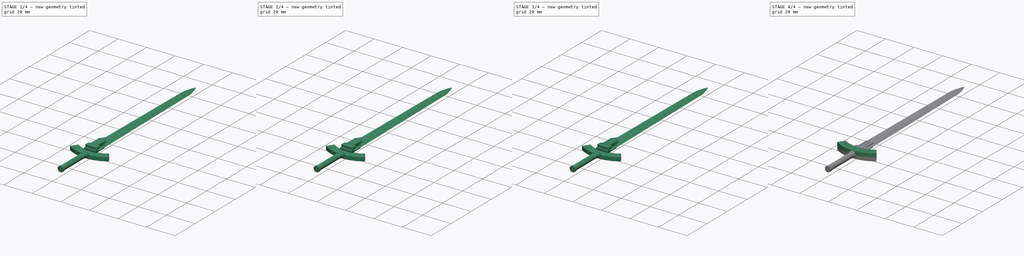
[diagram: build sequence overview — one tinted view per stage of 4, left to right]
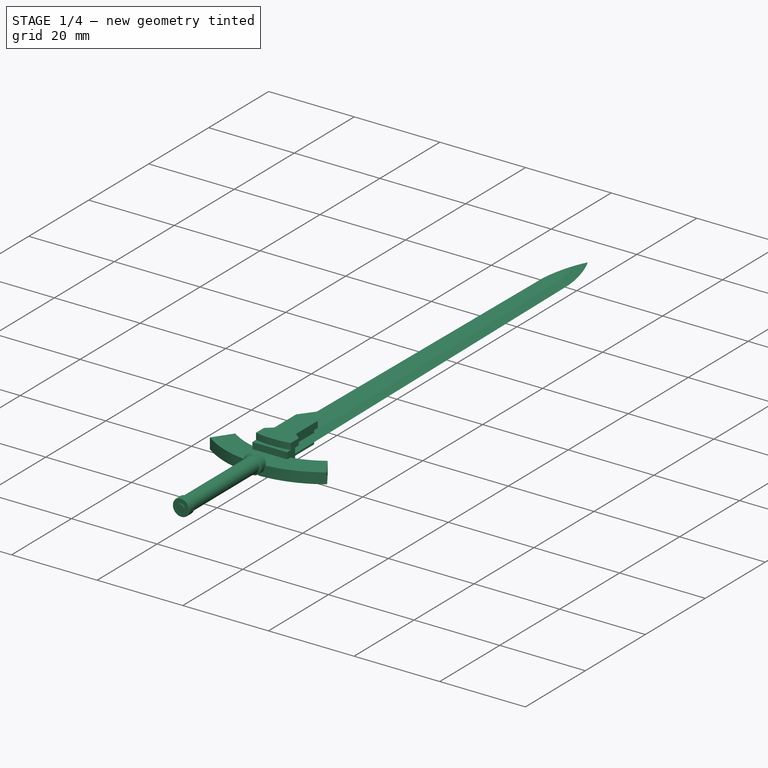
[diagram: stage 1 of 4 — iso view after this stage's code; geometry added in this stage tinted green]
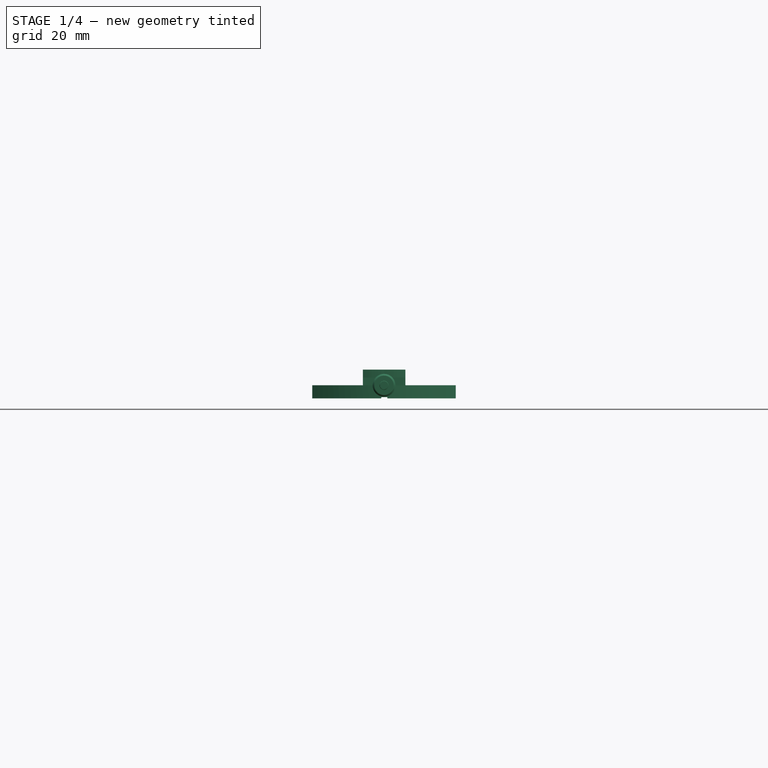
[diagram: stage 1 of 4 — front view after this stage's code; geometry added in this stage tinted green]
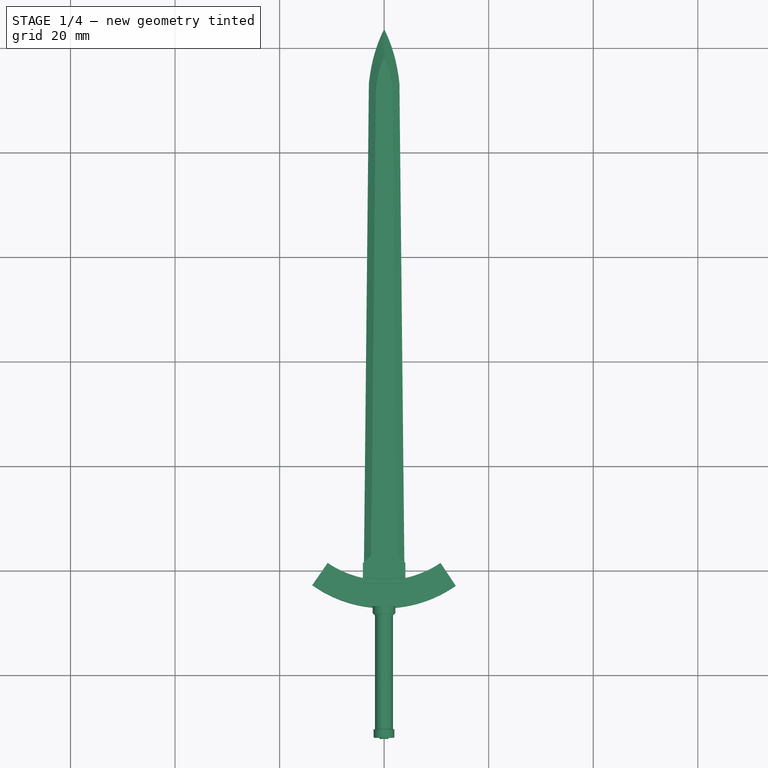
[diagram: stage 1 of 4 — top view after this stage's code; geometry added in this stage tinted green]
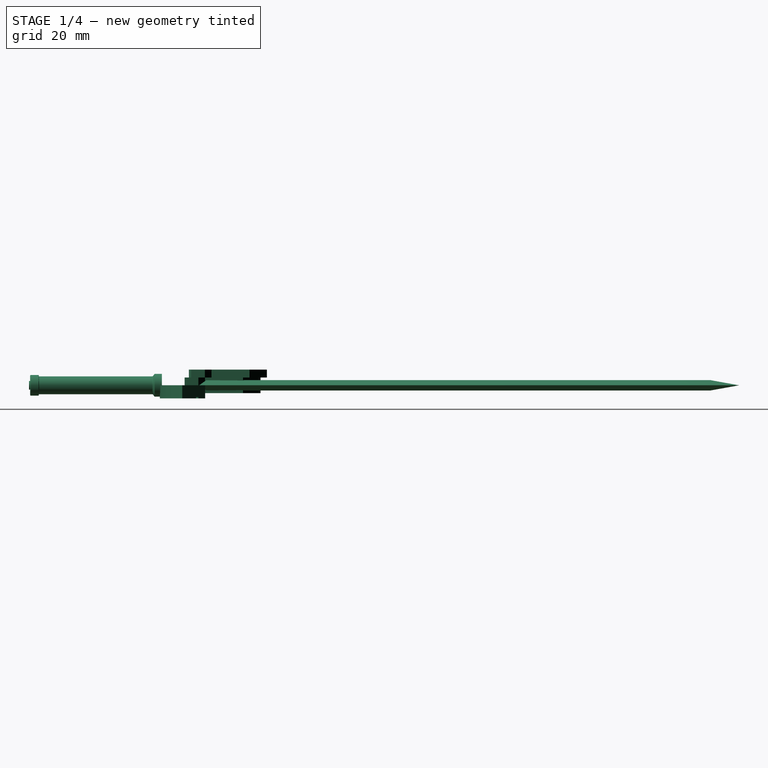
[diagram: stage 1 of 4 — right view after this stage's code; geometry added in this stage tinted green]
FCSTD DOCUMENT  (FreeCAD 0.20R29410 (Git))
Label: EX_all
License: All rights reserved
LicenseURL: http://en.wikipedia.org/wiki/All_rights_reserved
objects: Sketcher::SketchObject×7, PartDesign::Pocket×6, App::FeaturePython×6, Part::FeaturePython×4, PartDesign::Body×4, PartDesign::Boolean×2, PartDesign::Pad×1, PartDesign::FeatureBase×1, Part::Feature×1
note: 33 computed .brp shape members not serialized (recipe doc carries the construction recipe); baked Part::Feature solids carry a one-line shape summary decoded from their .brp

FEATURE [Part::FeaturePython] b_Ex__gard_001_001  label="Ex._gard_002"  # a2plus imported part (geometry in sourceFile) (typed FeaturePython)
  Placement = pos=(0,0,0) rot=(0,1,0;3.14159rad)
  a2p_Version = V0.1
  fixedPosition = true
  objectType = a2pPart
  sourceFile = .\Ex._gard.FCStd
  subassemblyImport = false
  timeLastImport = 1.6675e+09
  updateColors = true
FEATURE [Sketcher::SketchObject] MirroredSketch
  FullyConstrained = false
  Placement = pos=(0,0,3) rot=(0,0,1;0rad)
  sketch-geometry (7):
    g0: LineSegment StartX=2.82661 StartY=-39.1381 StartZ=0 EndX=2.82661 EndY=-40.013 EndZ=0
    g1: LineSegment StartX=2.46012 StartY=-40.0071 StartZ=0 EndX=2.82661 EndY=-40.013 EndZ=0
    g2: LineSegment StartX=2.46012 StartY=-40.0071 StartZ=0 EndX=0.639511 EndY=-37.82 EndZ=0
    g3: LineSegment StartX=0.639511 StartY=-37.82 StartZ=0 EndX=0.639511 EndY=-37.353 EndZ=0
    g4: LineSegment StartX=2.82661 StartY=-39.1381 StartZ=0 EndX=1.75668 EndY=-37.8301 EndZ=0
    g5: LineSegment StartX=1.75668 StartY=-37.8301 StartZ=0 EndX=1.75668 EndY=-36.6065 EndZ=0
    g6: LineSegment StartX=1.75668 StartY=-36.6065 StartZ=0 EndX=0.639511 EndY=-37.353 EndZ=0
  constraints (10):
    c: Vertical(g0)
    c: Coincident(g1,g0)
    c: Coincident(g2,g1)
    c: Coincident(g3,g2)
    c: Vertical(g3)
    c: Coincident(g4,g0)
    c: Coincident(g5,g4)
    c: Vertical(g5)
    c: Coincident(g6,g5)
    c: Coincident(g6,g3)
FEATURE [Sketcher::SketchObject] Sketch
  FullyConstrained = true
  MapMode = 5
  Placement = pos=(-12.8461,-9.73503,0) rot=(0.331487,0.667127,0.667127;2.50142rad)
FEATURE [Sketcher::SketchObject] Sketch007
  FullyConstrained = false
  Placement = pos=(0,0,1.5) rot=(0,0,1;0rad)
  sketch-geometry (10):
    g0: LineSegment StartX=4.0672 StartY=-38.5567 StartZ=0 EndX=2.52832 EndY=-37.2886 EndZ=0
    g1: LineSegment StartX=2.52832 StartY=-37.2886 StartZ=0 EndX=2.52832 EndY=-30.0227 EndZ=0
    g2: LineSegment StartX=2.52832 StartY=-30.0227 StartZ=0 EndX=0 EndY=-26.6864 EndZ=0
    g3: LineSegment StartX=4.0672 StartY=-38.5567 StartZ=0 EndX=4.0672 EndY=-41.1902 EndZ=0
    g4: ArcOfCircle CenterX=0.714289 CenterY=-27.9733 CenterZ=0 NormalX=0 NormalY=0 NormalZ=1 AngleXU=0 Radius=13.6355 StartAngle=4.65998 EndAngle=4.96083
    g5: LineSegment StartX=-4.0672 StartY=-38.5567 StartZ=0 EndX=-2.52832 EndY=-37.2886 EndZ=0
    g6: LineSegment StartX=-2.52832 StartY=-37.2886 StartZ=0 EndX=-2.52832 EndY=-30.0227 EndZ=0
    g7: LineSegment StartX=-2.52832 StartY=-30.0227 StartZ=0 EndX=0 EndY=-26.6864 EndZ=0
    g8: LineSegment StartX=-4.0672 StartY=-38.5567 StartZ=0 EndX=-4.0672 EndY=-41.1902 EndZ=0
    g9: ArcOfCircle CenterX=-0.714289 CenterY=-27.9733 CenterZ=0 NormalX=0 NormalY=0 NormalZ=1 AngleXU=0 Radius=13.6355 StartAngle=4.46395 EndAngle=4.7648
  constraints (14):
    c: Coincident(g1,g0)
    c: Vertical(g1)
    c: Coincident(g2,g1)
    c: Coincident(g3,g0)
    c: Vertical(g3)
    c: Coincident(g4,g3)
    c: Coincident(g6,g5)
    c: Vertical(g6)
    c: Coincident(g7,g6)
    c: PointOnObject(g7,g-2)
    c: Coincident(g8,g5)
    c: Vertical(g8)
    c: Coincident(g9,g8)
    c: PointOnObject(g9,g-2)
FEATURE [PartDesign::Pad] Pad
  Direction = (0,0,1)
  Length = 1.5
  Length2 = 10
  Placement = pos=(0,0,1.5) rot=(0,0,1;0rad)
  Profile = -> Sketch007
  ReferenceAxis = -> Sketch007 [N_Axis]
  Type = 0
FEATURE [PartDesign::Body] Body003
  Group = -> [Boolean001,Sketch017,Pocket005]
  Origin = -> Origin003
  Tip = -> Pocket005
FEATURE [Part::FeaturePython] Body003_001  # a2plus imported part (geometry in sourceFile) (typed FeaturePython)
  Placement = pos=(0,-1.22523,0) rot=(0,0,1;0rad)
  a2p_Version = V0.1
  fixedPosition = false
  localSourceObject = Body003
  objectType = a2pPart
  sourceFile = converted
  subassemblyImport = false
  timeLastImport = 1.6675e+09
  updateColors = true
FEATURE [App::FeaturePython] planeCoincident_002  label="planeCoincident_002__Ex._gard_002"  # a2plus constraint (typed FeaturePython)
  Object1 = Body003_001
  Object2 = b_Ex__gard_001_001
  ParentTreeObject = -> Body003_001
  SubElement1 = Face4
  SubElement2 = Face10
  Suppressed = false
  Type = plane
  directionConstraint = 1
  offset = 0
FEATURE [App::FeaturePython] planeCoincident_002_mirror  label="planeCoincident_002__Body003_001"  # a2plus constraint (typed FeaturePython)
  Object1 = Body003_001
  Object2 = b_Ex__gard_001_001
  ParentTreeObject = -> b_Ex__gard_001_001
  SubElement1 = Face4
  SubElement2 = Face10
  Suppressed = false
  Type = plane
  directionConstraint = 1
  offset = 0
FEATURE [Part::FeaturePython] b_EX_Handle_001_  label="EX_Handle_001"  # a2plus imported part (geometry in sourceFile) (typed FeaturePython)
  Placement = pos=(-0.02855,0.36,0.0047) rot=(0,1,0;0rad)
  a2p_Version = V0.1
  fixedPosition = false
  objectType = a2pPart
  sourceFile = .\EX_Handle.FCStd
  subassemblyImport = false
  timeLastImport = 1.6675e+09
  updateColors = true
FEATURE [App::FeaturePython] planeCoincident_003  label="planeCoincident_003__Ex._gard_002"  # a2plus constraint (typed FeaturePython)
  Object1 = b_EX_Handle_001_
  Object2 = b_Ex__gard_001_001
  ParentTreeObject = -> b_EX_Handle_001_
  SubElement1 = Face16
  SubElement2 = Face14
  Suppressed = false
  Type = plane
  directionConstraint = 1
  offset = 0
FEATURE [App::FeaturePython] planeCoincident_003_mirror  label="planeCoincident_003__EX_Handle_001"  # a2plus constraint (typed FeaturePython)
  Object1 = b_EX_Handle_001_
  Object2 = b_Ex__gard_001_001
  ParentTreeObject = -> b_Ex__gard_001_001
  SubElement1 = Face16
  SubElement2 = Face14
  Suppressed = false
  Type = plane
  directionConstraint = 1
  offset = 0
FEATURE [App::FeaturePython] planeCoincident_001  label="planeCoincident_001__EX_Handle_001"  # a2plus constraint (typed FeaturePython)
  Object1 = b_Ex__gard_001_001
  Object2 = b_EX_Handle_001_
  ParentTreeObject = -> b_Ex__gard_001_001
  SubElement1 = Face14
  SubElement2 = Face16
  Suppressed = false
  Type = plane
  directionConstraint = 1
  offset = 0
FEATURE [App::FeaturePython] planeCoincident_001_mirror  label="planeCoincident_001__Ex._gard_002"  # a2plus constraint (typed FeaturePython)
  Object1 = b_Ex__gard_001_001
  Object2 = b_EX_Handle_001_
  ParentTreeObject = -> b_EX_Handle_001_
  SubElement1 = Face14
  SubElement2 = Face16
  Suppressed = false
  Type = plane
  directionConstraint = 1
  offset = 0
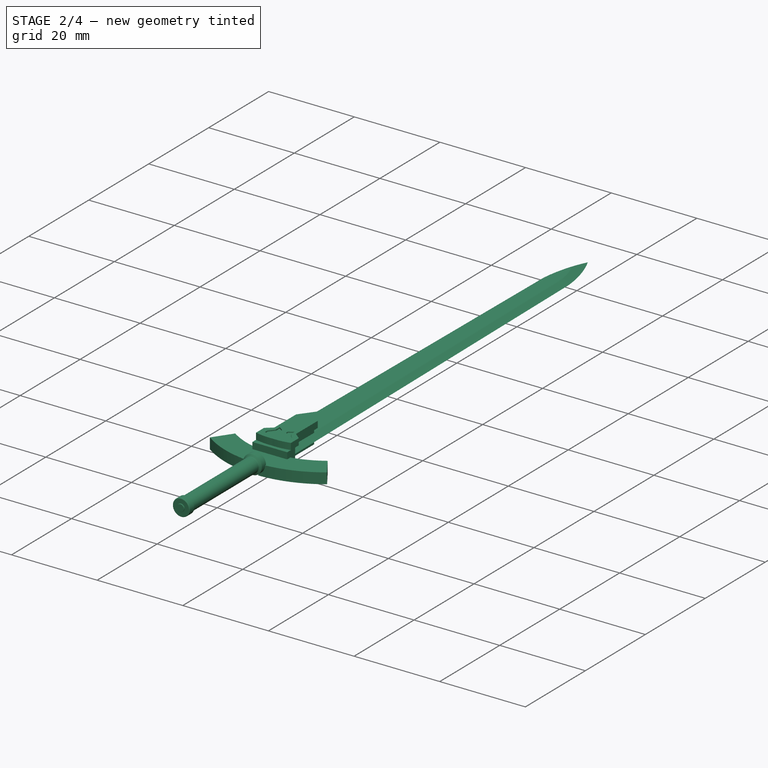
[diagram: stage 2 of 4 — iso view after this stage's code; geometry added in this stage tinted green]
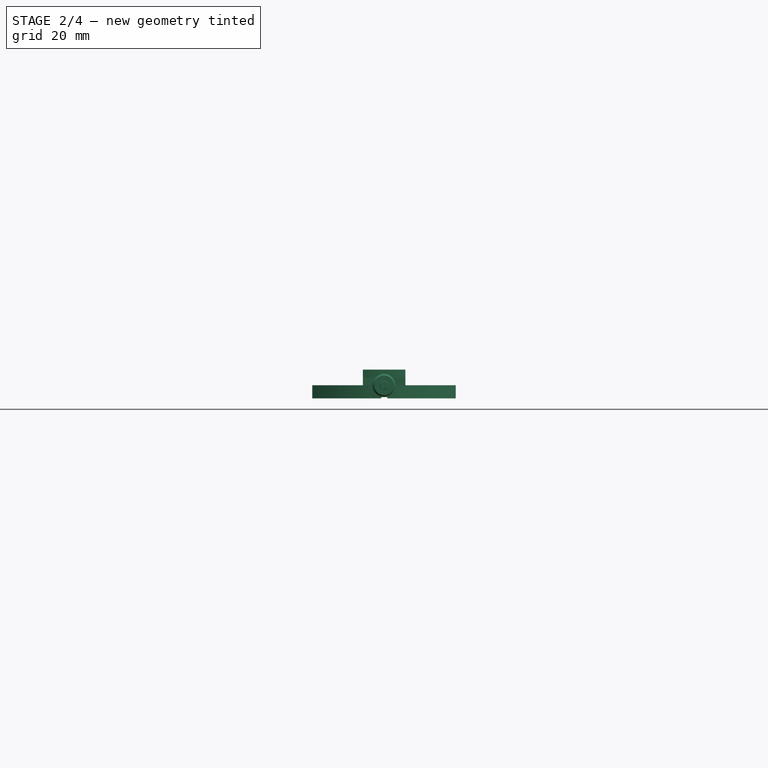
[diagram: stage 2 of 4 — front view after this stage's code; geometry added in this stage tinted green]
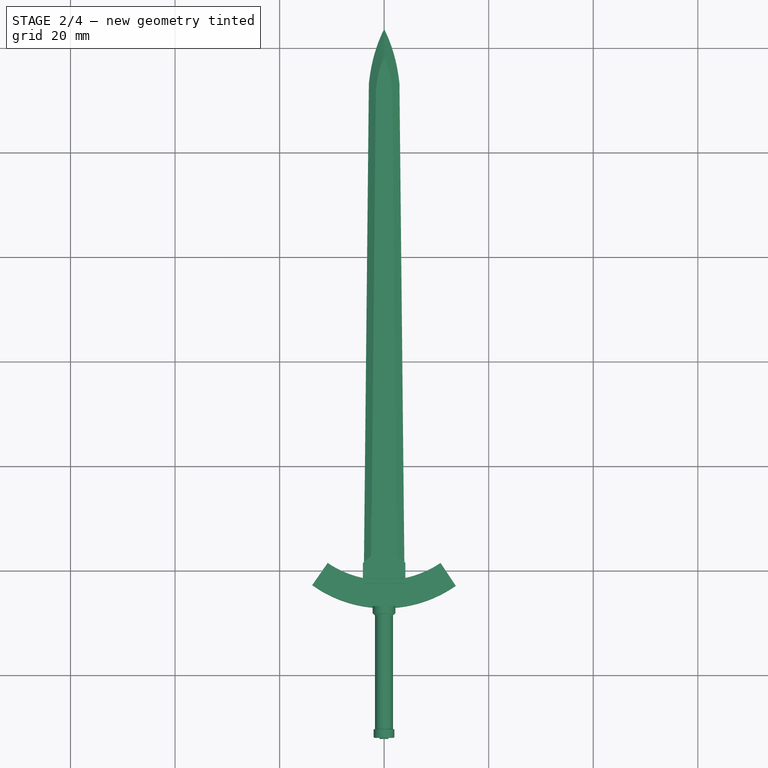
[diagram: stage 2 of 4 — top view after this stage's code; geometry added in this stage tinted green]
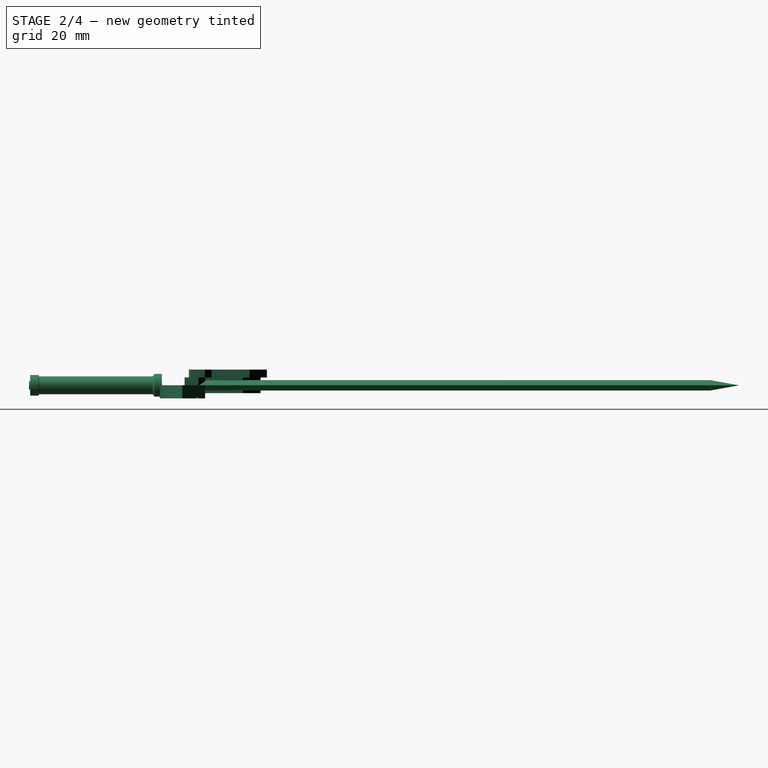
[diagram: stage 2 of 4 — right view after this stage's code; geometry added in this stage tinted green]
FEATURE [Sketcher::SketchObject] Sketch008
  FullyConstrained = false
  MapMode = 5
  Placement = pos=(0,0,3) rot=(0,0,1;0rad)
  Support = -> [Pad]
  sketch-geometry (7):
    g0: LineSegment StartX=-2.82661 StartY=-39.1381 StartZ=0 EndX=-2.82661 EndY=-40.013 EndZ=0
    g1: LineSegment StartX=-2.46012 StartY=-40.0071 StartZ=0 EndX=-2.82661 EndY=-40.013 EndZ=0
    g2: LineSegment StartX=-2.46012 StartY=-40.0071 StartZ=0 EndX=-0.639511 EndY=-37.82 EndZ=0
    g3: LineSegment StartX=-0.639511 StartY=-37.82 StartZ=0 EndX=-0.639511 EndY=-37.353 EndZ=0
    g4: LineSegment StartX=-2.82661 StartY=-39.1381 StartZ=0 EndX=-1.75668 EndY=-37.8301 EndZ=0
    g5: LineSegment StartX=-1.75668 StartY=-37.8301 StartZ=0 EndX=-1.75668 EndY=-36.6065 EndZ=0
    g6: LineSegment StartX=-1.75668 StartY=-36.6065 StartZ=0 EndX=-0.639511 EndY=-37.353 EndZ=0
  constraints (10):
    c: Vertical(g0)
    c: Coincident(g1,g0)
    c: Coincident(g2,g1)
    c: Coincident(g3,g2)
    c: Vertical(g3)
    c: Coincident(g4,g0)
    c: Coincident(g5,g4)
    c: Vertical(g5)
    c: Coincident(g6,g5)
    c: Coincident(g6,g3)
FEATURE [PartDesign::Pocket] Pocket
  BaseFeature = -> Pad
  Direction = (0,0,-1)
  Length = 0.25
  Length2 = 5
  Placement = pos=(0,0,1.5) rot=(0,0,1;0rad)
  Profile = -> Sketch008
  ReferenceAxis = -> Sketch008 [N_Axis]
  Type = 0
FEATURE [PartDesign::Pocket] Pocket001
  BaseFeature = -> Pocket
  Direction = (0,0,-1)
  Length = 0.25
  Length2 = 5
  Placement = pos=(0,0,1.5) rot=(0,0,1;0rad)
  Profile = -> Sketch008
  ReferenceAxis = -> Sketch008 [N_Axis]
  Type = 0
FEATURE [PartDesign::Pocket] Pocket002
  BaseFeature = -> Pocket001
  Direction = (0,0,-1)
  Length = 0.25
  Length2 = 5
  Placement = pos=(0,0,1.5) rot=(0,0,1;0rad)
  Profile = -> MirroredSketch
  ReferenceAxis = -> MirroredSketch [N_Axis]
  Type = 0
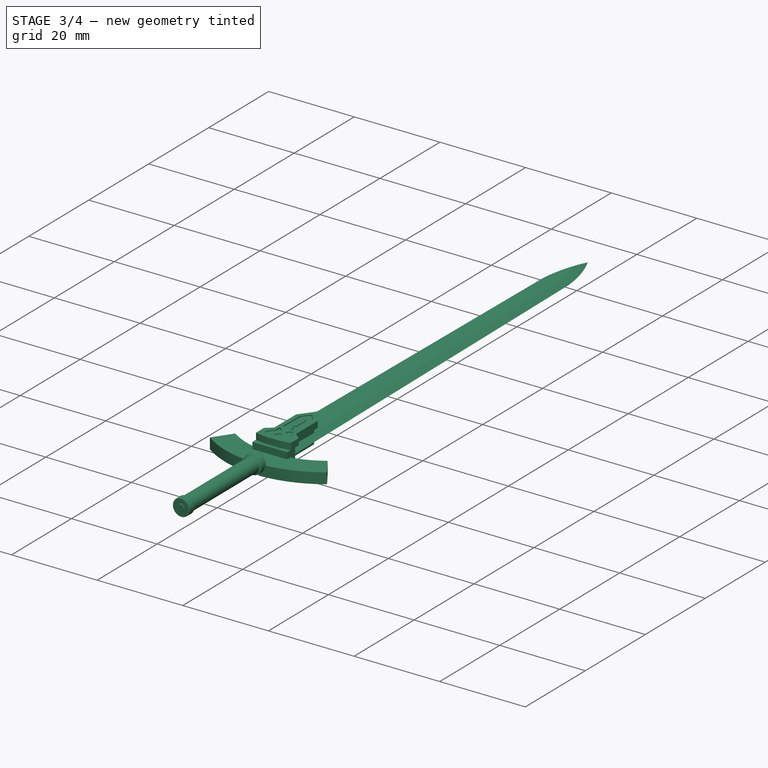
[diagram: stage 3 of 4 — iso view after this stage's code; geometry added in this stage tinted green]
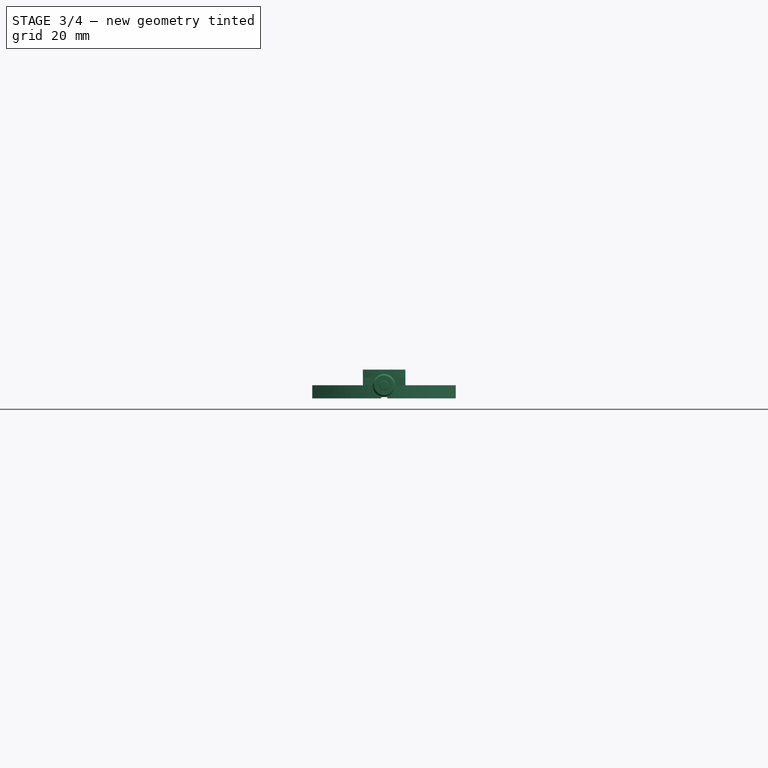
[diagram: stage 3 of 4 — front view after this stage's code; geometry added in this stage tinted green]
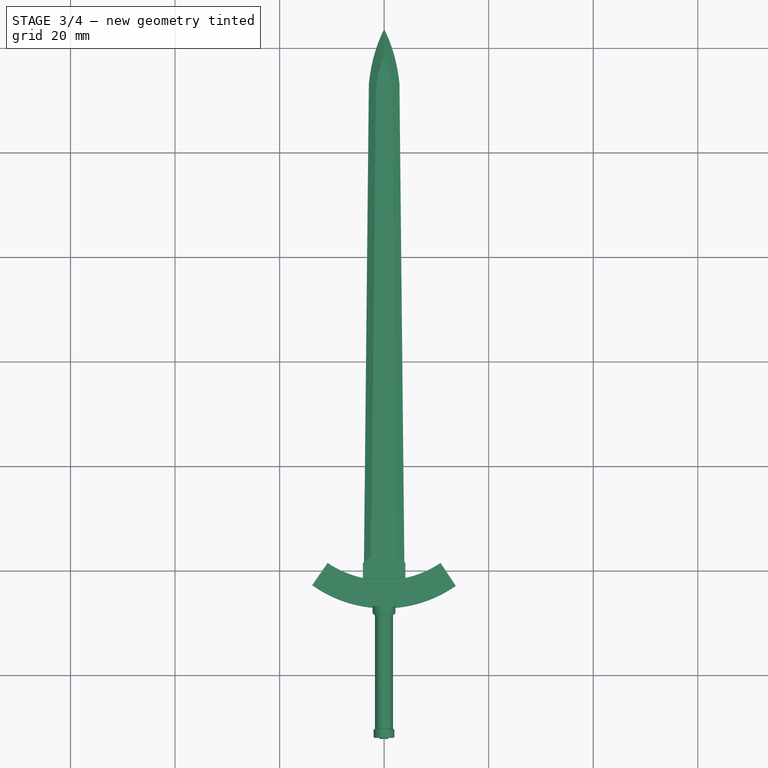
[diagram: stage 3 of 4 — top view after this stage's code; geometry added in this stage tinted green]
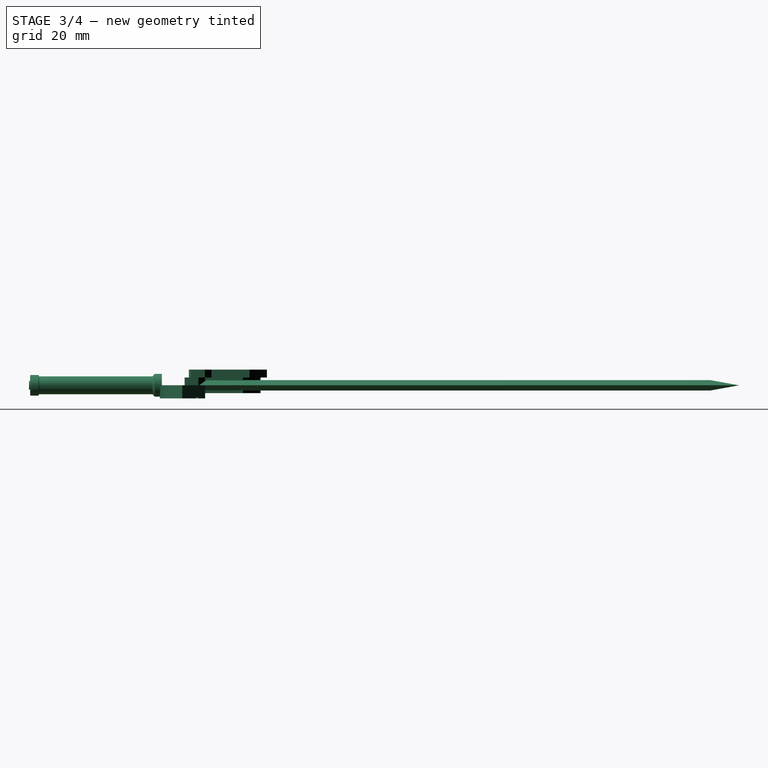
[diagram: stage 3 of 4 — right view after this stage's code; geometry added in this stage tinted green]
FEATURE [Sketcher::SketchObject] Sketch010
  FullyConstrained = false
  Placement = pos=(0,0,3) rot=(0,0,1;0rad)
  sketch-geometry (4):
    g0: LineSegment StartX=0 StartY=-38.5945 StartZ=0 EndX=0.948123 EndY=-39.8146 EndZ=0
    g1: LineSegment StartX=0.948123 StartY=-39.8146 StartZ=0 EndX=0 EndY=-40.7749 EndZ=0
    g2: LineSegment StartX=0 StartY=-38.5945 StartZ=0 EndX=-0.948123 EndY=-39.8146 EndZ=0
    g3: LineSegment StartX=-0.948123 StartY=-39.8146 StartZ=0 EndX=0 EndY=-40.7749 EndZ=0
  constraints (4):
    c: Coincident(g1,g0)
    c: PointOnObject(g2,g-2)
    c: Coincident(g3,g2)
    c: PointOnObject(g3,g-2)
FEATURE [PartDesign::Pocket] Pocket003
  BaseFeature = -> Pocket002
  Direction = (0,0,-1)
  Length = 0.25
  Length2 = 5
  Placement = pos=(0,0,1.5) rot=(0,0,1;0rad)
  Profile = -> Sketch010
  ReferenceAxis = -> Sketch010 [N_Axis]
  Type = 0
FEATURE [Sketcher::SketchObject] Sketch012
  FullyConstrained = false
  Placement = pos=(0,0,3) rot=(0,0,1;0rad)
  sketch-geometry (64):
    g0: LineSegment StartX=0 StartY=-28.428 StartZ=0 EndX=-1.46842 EndY=-30.0019 EndZ=0
    g1: LineSegment StartX=-1.46842 StartY=-30.0019 StartZ=0 EndX=-1.61087 EndY=-35.7131 EndZ=0
    g2: LineSegment StartX=-1.61087 StartY=-35.7131 StartZ=0 EndX=-0.64098 EndY=-36.2924 EndZ=0
    g3-g17: Circle x15 (B-spline internal-alignment scaffolding for g18; pole/knot coordinates omitted)
    g18: BSplineCurve PolesCount=15 KnotsCount=13 Degree=3 IsPeriodic=0
    g19-g31: GeomPoint x13 (B-spline internal-alignment scaffolding for g18; pole/knot coordinates omitted)
    g32: LineSegment StartX=0 StartY=-28.428 StartZ=0 EndX=1.46842 EndY=-30.0019 EndZ=0
    g33: LineSegment StartX=1.46842 StartY=-30.0019 StartZ=0 EndX=1.61087 EndY=-35.7131 EndZ=0
    g34: LineSegment StartX=1.61087 StartY=-35.7131 StartZ=0 EndX=0.64098 EndY=-36.2924 EndZ=0
    g35-g49: Circle x15 (B-spline internal-alignment scaffolding for g50; pole/knot coordinates omitted)
    g50: BSplineCurve PolesCount=15 KnotsCount=13 Degree=3 IsPeriodic=0
    g51-g63: GeomPoint x13 (B-spline internal-alignment scaffolding for g50; pole/knot coordinates omitted)
  constraints (37):
    c: PointOnObject(g0,g-2)
    c: Coincident(g1,g0)
    c: Coincident(g2,g1)
    c: Weight(g3) = 1
    c: Coincident(g18,g2)
    c: Equal(g3,g4)
    c: Equal(g3,g5)
    c: PointOnObject(g5,g-2)
    c: Equal(g3, g6-g9) x4
    c: PointOnObject(g9,g7)
    c: Equal(g3,g10)
    c: Equal(g3,g11)
    c: PointOnObject(g11,g9)
    c: Equal(g3,g12)
    c: PointOnObject(g12,g10)
    c: Equal(g3,g13)
    c: PointOnObject(g13,g10)
    c: Equal(g3, g14-g17) x4
    c: PointOnObject(g18,g-2)
    c: InternalAlignment(g3-g17 -> g18) x15
    c: InternalAlignment(g19-g31 -> g18) x13
    c: Coincident(g33,g32)
    c: Coincident(g34,g33)
    c: Weight(g35) = 1
    c: Coincident(g50,g34)
    c: Equal(g35, g36-g41) x6
    c: PointOnObject(g41,g39)
    c: Equal(g35,g42)
    c: Equal(g35,g43)
    c: PointOnObject(g43,g41)
    c: Equal(g35,g44)
    c: PointOnObject(g44,g42)
    c: Equal(g35,g45)
    c: PointOnObject(g45,g42)
    c: Equal(g35, g46-g49) x4
    c: InternalAlignment(g35-g49 -> g50) x15
    c: InternalAlignment(g51-g63 -> g50) x13
FEATURE [PartDesign::Pocket] Pocket004
  BaseFeature = -> Pocket003
  Direction = (0,0,-1)
  Length = 0.25
  Length2 = 5
  Placement = pos=(0,0,1.5) rot=(0,0,1;0rad)
  Profile = -> Sketch012
  ReferenceAxis = -> Sketch012 [N_Axis]
  Type = 0
FEATURE [PartDesign::Body] Body
  Group = -> [Sketch007,Sketch,Pad,Sketch008,Pocket,Pocket001,MirroredSketch,Pocket002,Sketch010,Pocket003,Sketch012,Pocket004]
  Origin = -> Origin
  Placement = pos=(0,0.0005,1.5) rot=(0,1,0;3.14159rad)
  Tip = -> Pocket004
FEATURE [PartDesign::FeatureBase] Clone
  BaseFeature = -> Pocket004
  Placement = pos=(0,0,1.5) rot=(0,0,1;0rad)
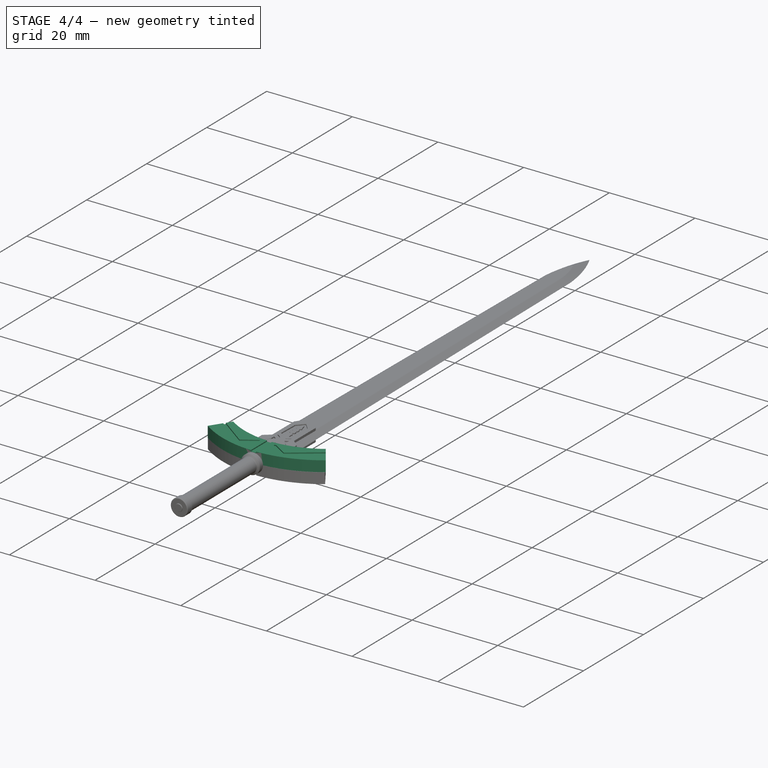
[diagram: stage 4 of 4 — iso view after this stage's code; geometry added in this stage tinted green]
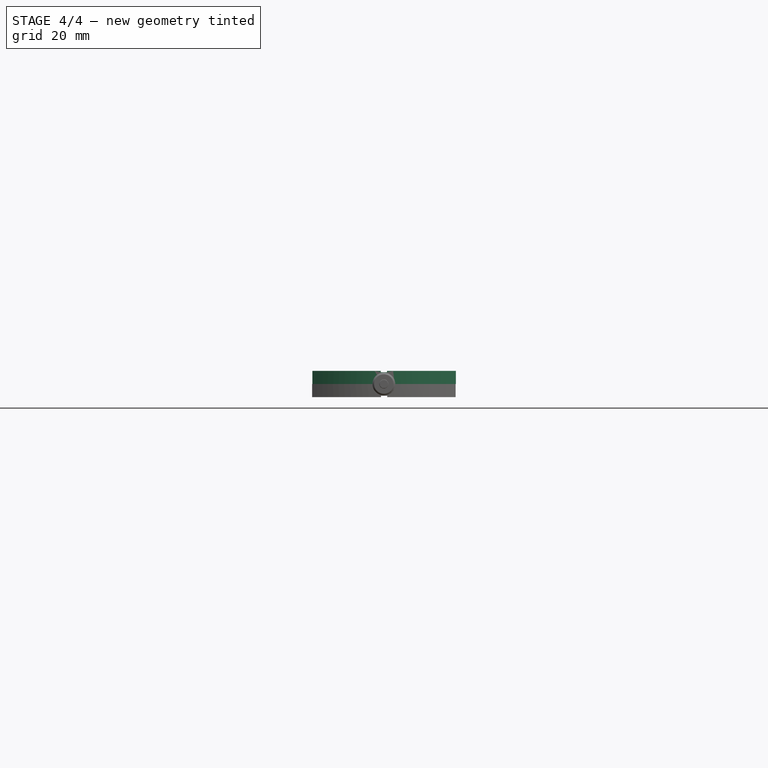
[diagram: stage 4 of 4 — front view after this stage's code; geometry added in this stage tinted green]
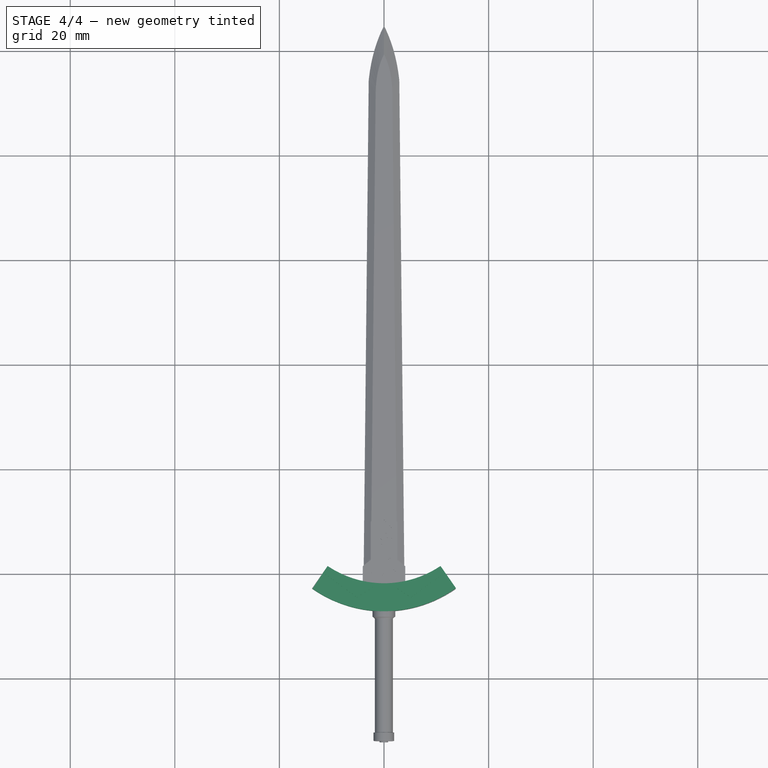
[diagram: stage 4 of 4 — top view after this stage's code; geometry added in this stage tinted green]
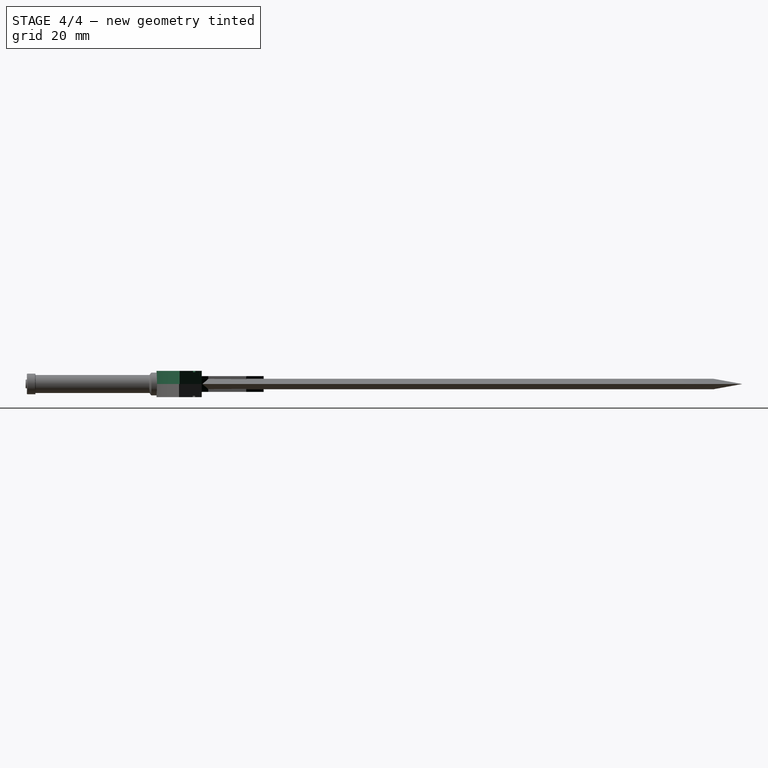
[diagram: stage 4 of 4 — right view after this stage's code; geometry added in this stage tinted green]
FEATURE [Part::FeaturePython] b_Ex__gard_001_  label="Ex._gard_001"  # a2plus imported part (geometry in sourceFile) (typed FeaturePython)
  a2p_Version = V0.1
  fixedPosition = true
  objectType = a2pPart
  sourceFile = .\Ex._gard.FCStd
  subassemblyImport = false
  timeLastImport = 1.6675e+09
  updateColors = true
FEATURE [PartDesign::Body] Body001
  BaseFeature = -> Pocket004
  Group = -> [Clone]
  Origin = -> Origin001
  Placement = pos=(0,0,-1.5) rot=(0,0,1;0rad)
  Tip = -> Clone
FEATURE [PartDesign::Boolean] Boolean
  Group = -> [Body001,Body]
  Type = 0
FEATURE [PartDesign::Body] Body002
  Group = -> [Boolean]
  Origin = -> Origin002
  Tip = -> Boolean
FEATURE [Part::Feature] Solid
  shape: bbox 7.753 x 103.3 x 2 mm, 14 faces (baked)
FEATURE [PartDesign::Boolean] Boolean001
  Group = -> [Solid,Body002]
  Type = 0
FEATURE [Sketcher::SketchObject] Sketch017
  FullyConstrained = false
  MapMode = 5
  Placement = pos=(0,0,1.5) rot=(0,0,1;0rad)
  Support = -> [Boolean001]
  sketch-geometry (4):
    g0: LineSegment StartX=-4.42723 StartY=-41.1869 StartZ=0 EndX=4.44281 EndY=-41.1869 EndZ=0
    g1: LineSegment StartX=4.44281 StartY=-41.1869 StartZ=0 EndX=4.44281 EndY=-41.7605 EndZ=0
    g2: LineSegment StartX=4.44281 StartY=-41.7605 StartZ=0 EndX=-4.42723 EndY=-41.7605 EndZ=0
    g3: LineSegment StartX=-4.42723 StartY=-41.7605 StartZ=0 EndX=-4.42723 EndY=-41.1869 EndZ=0
  constraints (8):
    c: Coincident(g0,g1)
    c: Coincident(g1,g2)
    c: Coincident(g2,g3)
    c: Coincident(g3,g0)
    c: Horizontal(g0)
    c: Horizontal(g2)
    c: Vertical(g1)
    c: Vertical(g3)
FEATURE [PartDesign::Pocket] Pocket005
  BaseFeature = -> Boolean001
  Direction = (0,0,-1)
  Length = 5
  Length2 = 5
  Profile = -> Sketch017
  ReferenceAxis = -> Sketch017 [N_Axis]
  Type = 0
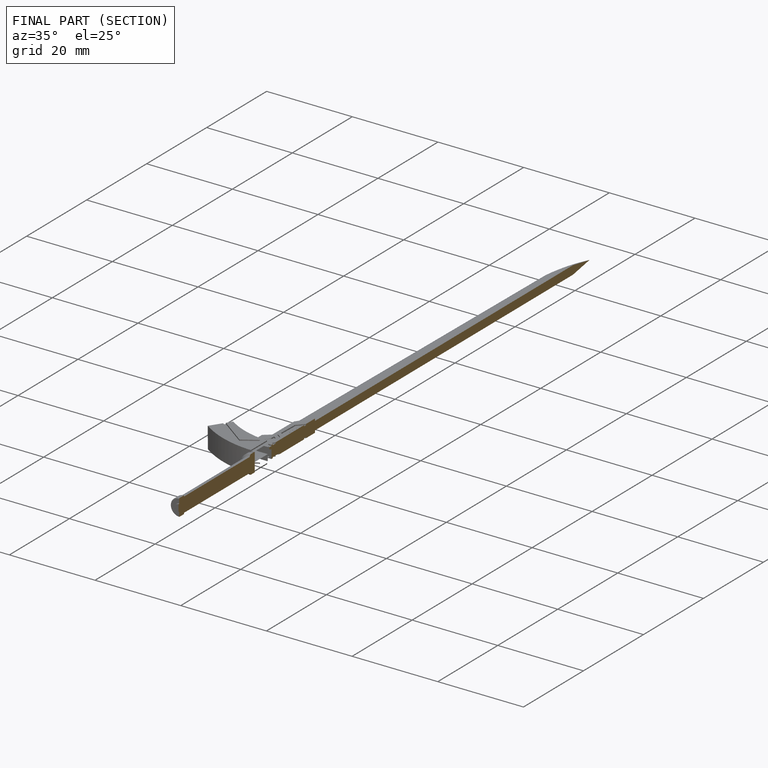
[diagram: finished part — half-section view (interior)]
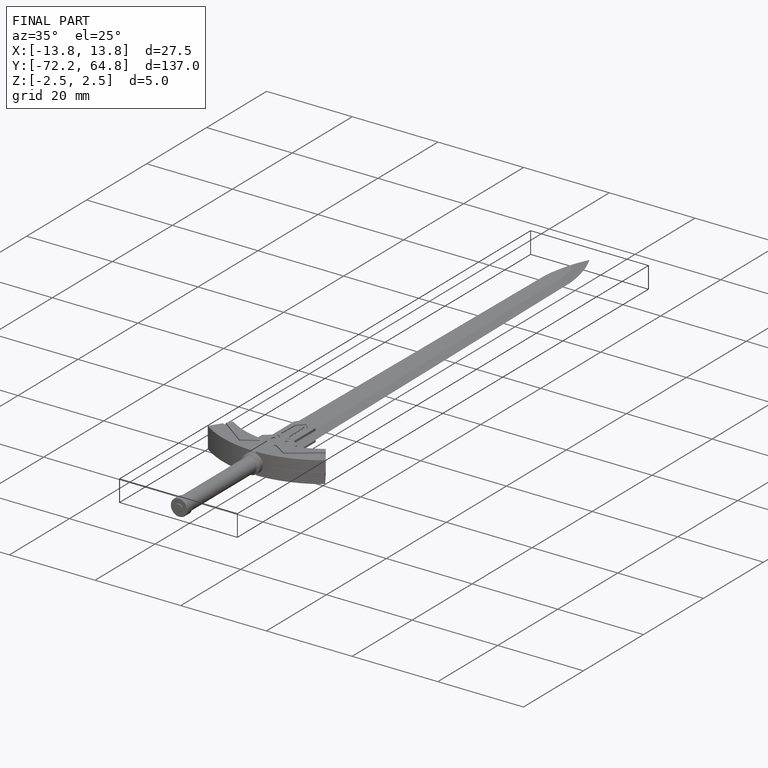
[diagram: finished part — iso view with bounding-box wireframe]
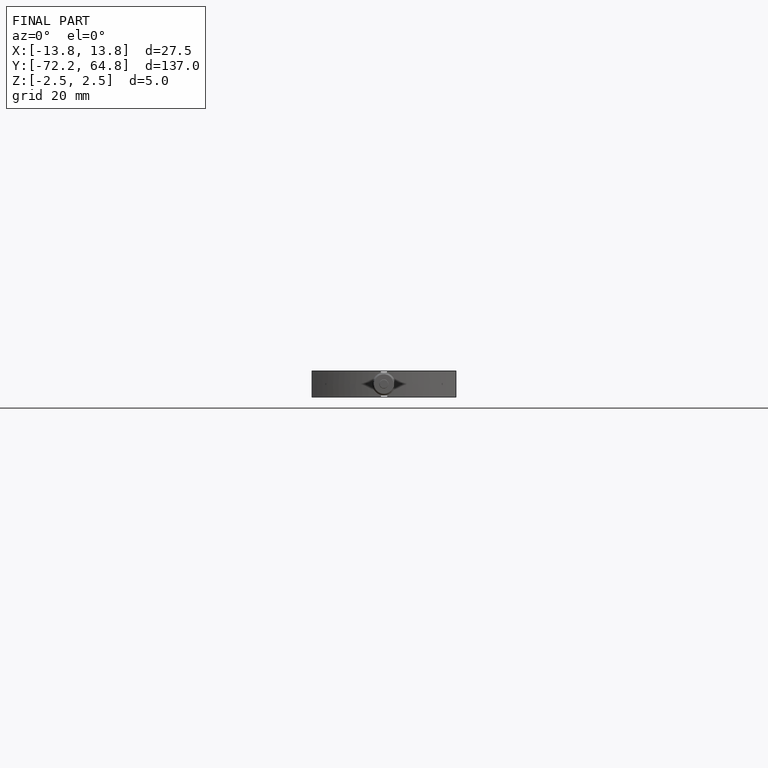
[diagram: finished part — front view with bounding-box wireframe]
